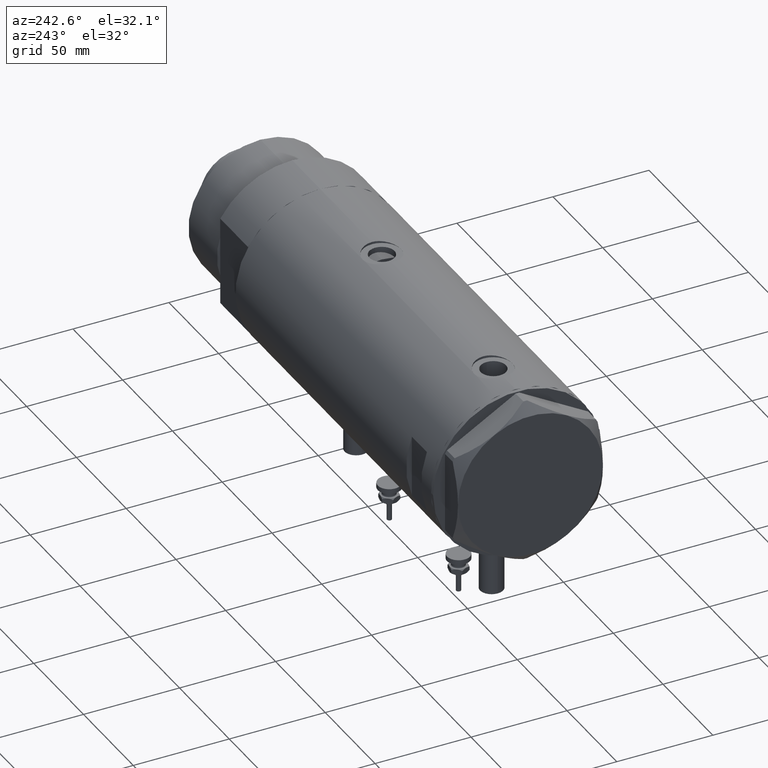
[diagram: clean part render]
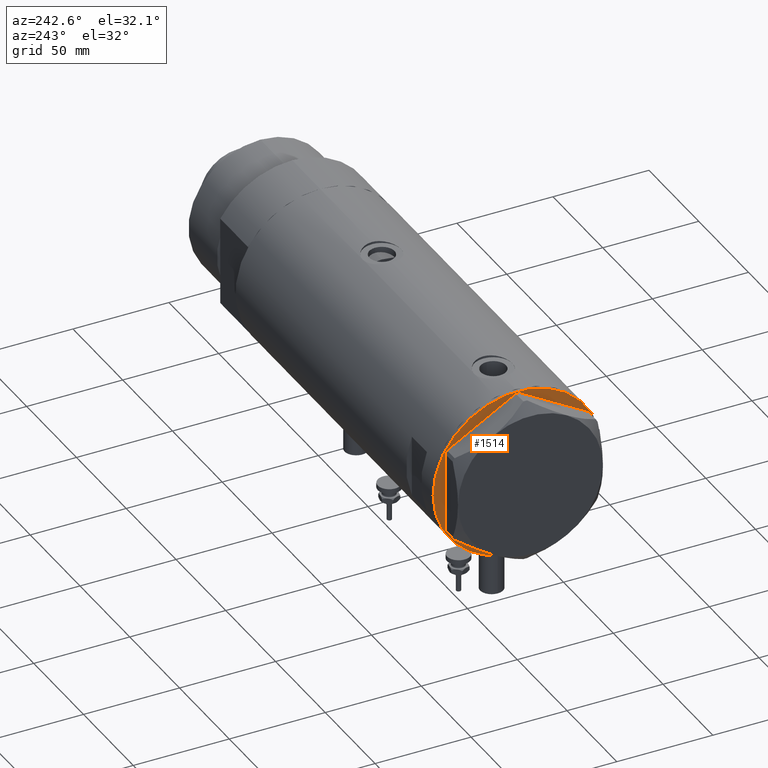
[diagram: same view with one face highlighted and labeled with its STEP entity id]
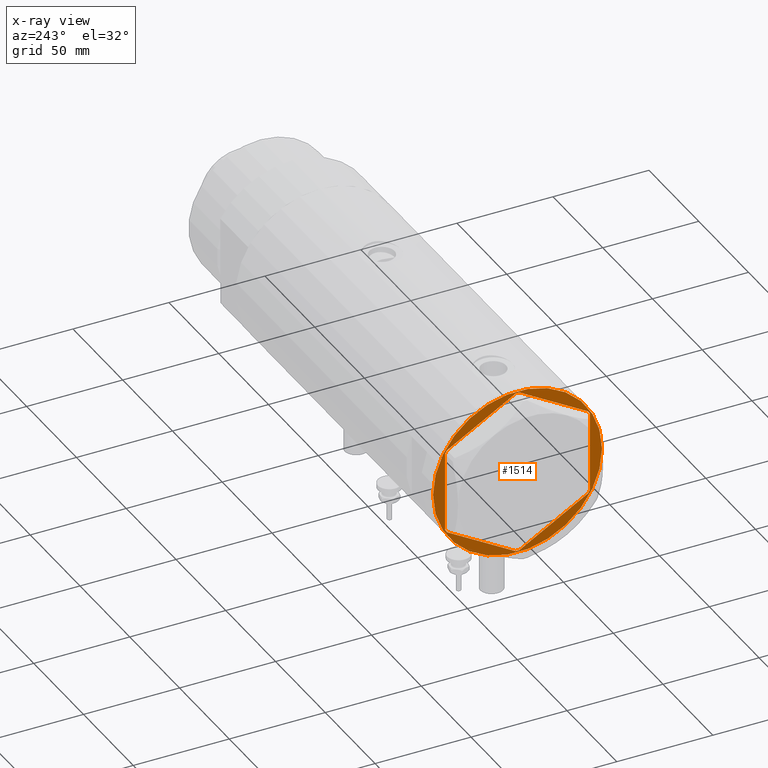
[diagram: x-ray of the same camera — body ghosted, the highlighted face saturated]
A machine part, auxiliary view. The second image highlights one B-rep face of the part: STEP entity #1514.
The next image is the same camera in x-ray: the body ghosted, the highlighted face saturated — about 0% of this face is hidden behind the body in this view.
In plain terms, the highlighted planar face has unit normal (1, 0, -0).
Its self-contained STEP definition (entity closure, byte-faithful):
#2 = CARTESIAN_POINT ( 'NONE',  ( 37.26502577388072979, 21.51497266190834523, 0.000000000000000000 ) ) ;
#166 = DIRECTION ( 'NONE',  ( -0.8660254037844385966, 0.5000000000000000000, 0.000000000000000000 ) ) ;
#287 = DIRECTION ( 'NONE',  ( -1.000000000000000000, 0.000000000000000000, 0.000000000000000000 ) ) ;
#296 = DIRECTION ( 'NONE',  ( -4.775569585389645902E-16, 1.000000000000000000, 0.000000000000000000 ) ) ;
#319 = CARTESIAN_POINT ( 'NONE',  ( -36.78005154776143826, 22.35497266190836996, 0.000000000000000000 ) ) ;
#416 = CARTESIAN_POINT ( 'NONE',  ( 0.000000000000000000, 0.000000000000000000, 0.000000000000000000 ) ) ;
#500 = AXIS2_PLACEMENT_3D ( 'NONE', #5792, #3389, #1102 ) ;
#505 = LINE ( 'NONE', #5557, #3135 ) ;
#514 = LINE ( 'NONE', #2, #5719 ) ;
#516 = ORIENTED_EDGE ( 'NONE', *, *, #4859, .F. ) ;
#648 = CARTESIAN_POINT ( 'NONE',  ( 37.75000000000002132, -20.67497266190835958, 0.000000000000000000 ) ) ;
#769 = ORIENTED_EDGE ( 'NONE', *, *, #4084, .F. ) ;
#918 = PLANE ( 'NONE',  #1342 ) ;
#953 = CARTESIAN_POINT ( 'NONE',  ( 37.75000000000000000, 20.67497266190835958, 0.000000000000000000 ) ) ;
#981 = VECTOR ( 'NONE', #2054, 999.9999999999998863 ) ;
#1018 = DIRECTION ( 'NONE',  ( 0.8660254037844385966, -0.4999999999999998890, 0.000000000000000000 ) ) ;
#1102 = DIRECTION ( 'NONE',  ( -1.000000000000000000, 0.000000000000000000, 0.000000000000000000 ) ) ;
#1121 = CARTESIAN_POINT ( 'NONE',  ( -37.74999999999999289, -21.79497266190838189, 0.000000000000000000 ) ) ;
#1127 = VERTEX_POINT ( 'NONE', #2237 ) ;
#1168 = VERTEX_POINT ( 'NONE', #5491 ) ;
#1180 = CARTESIAN_POINT ( 'NONE',  ( 37.26502577388077242, -21.51497266190830260, 0.000000000000000000 ) ) ;
#1237 = VERTEX_POINT ( 'NONE', #5210 ) ;
#1245 = VERTEX_POINT ( 'NONE', #953 ) ;
#1319 = ORIENTED_EDGE ( 'NONE', *, *, #2594, .F. ) ;
#1342 = AXIS2_PLACEMENT_3D ( 'NONE', #5018, #2781, #2719 ) ;
#1420 = DIRECTION ( 'NONE',  ( 0.4999999999999993894, -0.8660254037844390407, -0.000000000000000000 ) ) ;
#1456 = DIRECTION ( 'NONE',  ( 1.000000000000000000, -0.000000000000000000, -0.000000000000000000 ) ) ;
#1514 = ADVANCED_FACE ( 'NONE', ( #5485, #5081 ), #918, .F. ) ;
#1567 = VECTOR ( 'NONE', #1456, 1000.000000000000000 ) ;
#1597 = LINE ( 'NONE', #3932, #2365 ) ;
#1676 = CARTESIAN_POINT ( 'NONE',  ( 44.00000000000000000, 0.000000000000000000, 0.000000000000000000 ) ) ;
#1757 = VECTOR ( 'NONE', #166, 1000.000000000000227 ) ;
#1881 = EDGE_LOOP ( 'NONE', ( #4767, #4124 ) ) ;
#1915 = LINE ( 'NONE', #5636, #1567 ) ;
#1930 = EDGE_CURVE ( 'NONE', #2700, #1245, #514, .T. ) ;
#1959 = VECTOR ( 'NONE', #296, 1000.000000000000000 ) ;
#2054 = DIRECTION ( 'NONE',  ( -0.5000000000000002220, 0.8660254037844385966, -0.000000000000000000 ) ) ;
#2111 = CARTESIAN_POINT ( 'NONE',  ( -4.107234936485837051E-15, -43.58994532381674247, 0.000000000000000000 ) ) ;
#2138 = ORIENTED_EDGE ( 'NONE', *, *, #5466, .F. ) ;
#2187 = CARTESIAN_POINT ( 'NONE',  ( 0.000000000000000000, -43.02994532381674020, 0.000000000000000000 ) ) ;
#2235 = DIRECTION ( 'NONE',  ( 0.8660254037844388186, 0.4999999999999997224, 0.000000000000000000 ) ) ;
#2237 = CARTESIAN_POINT ( 'NONE',  ( -37.75000000000000711, 20.67497266190837024, 0.000000000000000000 ) ) ;
#2246 = CARTESIAN_POINT ( 'NONE',  ( 0.9699484522385760643, -43.02994532381674020, 0.000000000000000000 ) ) ;
#2337 = VECTOR ( 'NONE', #4367, 1000.000000000000227 ) ;
#2365 = VECTOR ( 'NONE', #2571, 1000.000000000000114 ) ;
#2367 = CARTESIAN_POINT ( 'NONE',  ( -0.9699484522385920515, -43.02994532381674020, 0.000000000000000000 ) ) ;
#2374 = ORIENTED_EDGE ( 'NONE', *, *, #2954, .T. ) ;
#2380 = VERTEX_POINT ( 'NONE', #2367 ) ;
#2406 = CARTESIAN_POINT ( 'NONE',  ( 0.9699484522385850571, 43.02994532381674020, 0.000000000000000000 ) ) ;
#2505 = LINE ( 'NONE', #4349, #981 ) ;
#2571 = DIRECTION ( 'NONE',  ( 0.4999999999999978351, 0.8660254037844398178, -0.000000000000000000 ) ) ;
#2594 = EDGE_CURVE ( 'NONE', #1237, #2380, #3499, .T. ) ;
#2600 = VERTEX_POINT ( 'NONE', #1676 ) ;
#2619 = ORIENTED_EDGE ( 'NONE', *, *, #4976, .T. ) ;
#2700 = VERTEX_POINT ( 'NONE', #5451 ) ;
#2719 = DIRECTION ( 'NONE',  ( -1.000000000000000000, 0.000000000000000000, -0.000000000000000000 ) ) ;
#2781 = DIRECTION ( 'NONE',  ( 0.000000000000000000, 0.000000000000000000, -1.000000000000000000 ) ) ;
#2814 = VERTEX_POINT ( 'NONE', #2406 ) ;
#2821 = VECTOR ( 'NONE', #1018, 1000.000000000000227 ) ;
#2954 = EDGE_CURVE ( 'NONE', #3959, #3875, #3492, .T. ) ;
#3135 = VECTOR ( 'NONE', #3779, 1000.000000000000000 ) ;
#3157 = CARTESIAN_POINT ( 'NONE',  ( 37.75000000000002132, -21.79497266190837124, 0.000000000000000000 ) ) ;
#3354 = ORIENTED_EDGE ( 'NONE', *, *, #3968, .F. ) ;
#3389 = DIRECTION ( 'NONE',  ( 0.000000000000000000, 0.000000000000000000, -1.000000000000000000 ) ) ;
#3492 = LINE ( 'NONE', #1180, #2337 ) ;
#3499 = LINE ( 'NONE', #1121, #2821 ) ;
#3613 = LINE ( 'NONE', #3157, #1959 ) ;
#3635 = VERTEX_POINT ( 'NONE', #2246 ) ;
#3779 = DIRECTION ( 'NONE',  ( -0.8660254037844387076, -0.4999999999999998890, 0.000000000000000000 ) ) ;
#3850 = EDGE_LOOP ( 'NONE', ( #3354, #5124, #5696, #2374, #769, #2619, #1319, #3916, #516, #5764, #2138, #5122 ) ) ;
#3870 = CARTESIAN_POINT ( 'NONE',  ( -0.9699484522385801721, 43.02994532381674020, 0.000000000000000000 ) ) ;
#3875 = VERTEX_POINT ( 'NONE', #5527 ) ;
#3899 = VECTOR ( 'NONE', #4452, 1000.000000000000000 ) ;
#3905 = EDGE_CURVE ( 'NONE', #2600, #1168, #4187, .T. ) ;
#3916 = ORIENTED_EDGE ( 'NONE', *, *, #3940, .T. ) ;
#3932 = CARTESIAN_POINT ( 'NONE',  ( -37.26502577388077242, 21.51497266190828483, 0.000000000000000000 ) ) ;
#3940 = EDGE_CURVE ( 'NONE', #1237, #5898, #2505, .T. ) ;
#3959 = VERTEX_POINT ( 'NONE', #648 ) ;
#3968 = EDGE_CURVE ( 'NONE', #2700, #2814, #4320, .T. ) ;
#4007 = VERTEX_POINT ( 'NONE', #3870 ) ;
#4031 = CARTESIAN_POINT ( 'NONE',  ( -37.74999999999999289, -20.67497266190837379, 0.000000000000000000 ) ) ;
#4084 = EDGE_CURVE ( 'NONE', #3635, #3875, #4441, .T. ) ;
#4124 = ORIENTED_EDGE ( 'NONE', *, *, #5396, .F. ) ;
#4147 = VERTEX_POINT ( 'NONE', #319 ) ;
#4187 = CIRCLE ( 'NONE', #500, 44.00000000000000000 ) ;
#4320 = LINE ( 'NONE', #5246, #1757 ) ;
#4349 = CARTESIAN_POINT ( 'NONE',  ( -37.26502577388070847, -21.51497266190838076, 0.000000000000000000 ) ) ;
#4367 = DIRECTION ( 'NONE',  ( -0.4999999999999981681, -0.8660254037844395958, -0.000000000000000000 ) ) ;
#4441 = LINE ( 'NONE', #2111, #5654 ) ;
#4452 = DIRECTION ( 'NONE',  ( -1.000000000000000000, -0.000000000000000000, -0.000000000000000000 ) ) ;
#4481 = DIRECTION ( 'NONE',  ( 0.000000000000000000, 0.000000000000000000, -1.000000000000000000 ) ) ;
#4767 = ORIENTED_EDGE ( 'NONE', *, *, #3905, .F. ) ;
#4786 = EDGE_CURVE ( 'NONE', #4007, #2814, #1915, .T. ) ;
#4859 = EDGE_CURVE ( 'NONE', #1127, #5898, #5894, .T. ) ;
#4968 = AXIS2_PLACEMENT_3D ( 'NONE', #416, #4481, #287 ) ;
#4974 = DIRECTION ( 'NONE',  ( 3.183713056926429451E-16, -1.000000000000000000, 0.000000000000000000 ) ) ;
#4976 = EDGE_CURVE ( 'NONE', #3635, #2380, #5472, .T. ) ;
#5010 = EDGE_CURVE ( 'NONE', #3959, #1245, #3613, .T. ) ;
#5018 = CARTESIAN_POINT ( 'NONE',  ( 0.000000000000000000, 0.000000000000000000, 0.000000000000000000 ) ) ;
#5081 = FACE_OUTER_BOUND ( 'NONE', #1881, .T. ) ;
#5122 = ORIENTED_EDGE ( 'NONE', *, *, #4786, .T. ) ;
#5123 = EDGE_CURVE ( 'NONE', #1127, #4147, #1597, .T. ) ;
#5124 = ORIENTED_EDGE ( 'NONE', *, *, #1930, .T. ) ;
#5210 = CARTESIAN_POINT ( 'NONE',  ( -36.78005154776141694, -22.35497266190838772, 0.000000000000000000 ) ) ;
#5246 = CARTESIAN_POINT ( 'NONE',  ( 37.75000000000000000, 21.79497266190837124, 0.000000000000000000 ) ) ;
#5262 = VECTOR ( 'NONE', #4974, 1000.000000000000000 ) ;
#5396 = EDGE_CURVE ( 'NONE', #1168, #2600, #5754, .T. ) ;
#5437 = CARTESIAN_POINT ( 'NONE',  ( -37.75000000000000711, 21.79497266190837124, 0.000000000000000000 ) ) ;
#5451 = CARTESIAN_POINT ( 'NONE',  ( 36.78005154776142405, 22.35497266190837706, 0.000000000000000000 ) ) ;
#5466 = EDGE_CURVE ( 'NONE', #4007, #4147, #505, .T. ) ;
#5472 = LINE ( 'NONE', #2187, #3899 ) ;
#5485 = FACE_BOUND ( 'NONE', #3850, .T. ) ;
#5491 = CARTESIAN_POINT ( 'NONE',  ( -44.00000000000000000, 5.388445916248353619E-15, 0.000000000000000000 ) ) ;
#5527 = CARTESIAN_POINT ( 'NONE',  ( 36.78005154776143115, -22.35497266190837706, 0.000000000000000000 ) ) ;
#5557 = CARTESIAN_POINT ( 'NONE',  ( 0.000000000000000000, 43.58994532381674247, 0.000000000000000000 ) ) ;
#5636 = CARTESIAN_POINT ( 'NONE',  ( 0.000000000000000000, 43.02994532381674020, 0.000000000000000000 ) ) ;
#5654 = VECTOR ( 'NONE', #2235, 1000.000000000000114 ) ;
#5696 = ORIENTED_EDGE ( 'NONE', *, *, #5010, .F. ) ;
#5719 = VECTOR ( 'NONE', #1420, 999.9999999999998863 ) ;
#5754 = CIRCLE ( 'NONE', #4968, 44.00000000000000000 ) ;
#5764 = ORIENTED_EDGE ( 'NONE', *, *, #5123, .T. ) ;
#5792 = CARTESIAN_POINT ( 'NONE',  ( 0.000000000000000000, 0.000000000000000000, 0.000000000000000000 ) ) ;
#5894 = LINE ( 'NONE', #5437, #5262 ) ;
#5898 = VERTEX_POINT ( 'NONE', #4031 ) ;